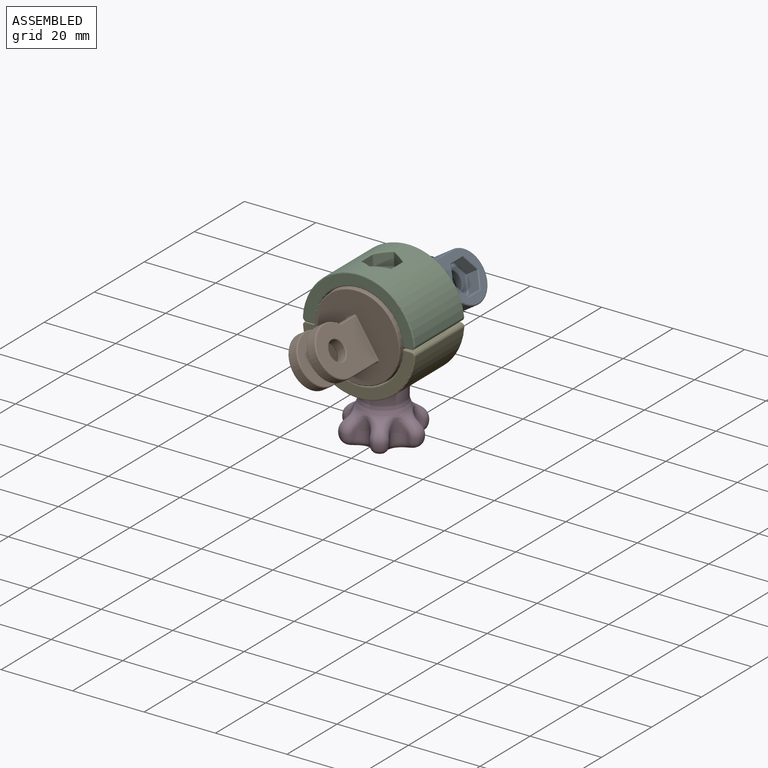
[diagram: assembled view]
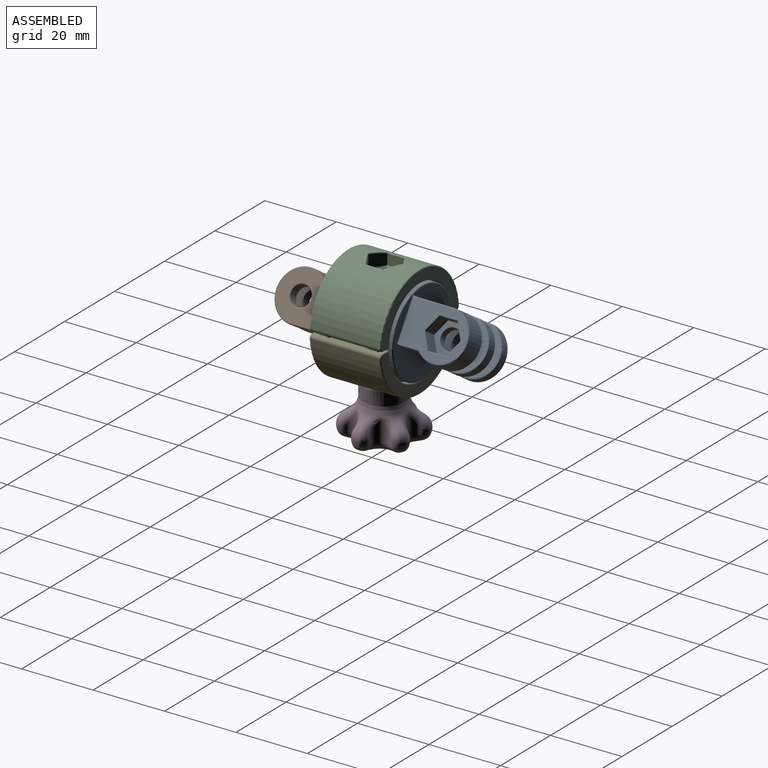
[diagram: assembled view, second angle]
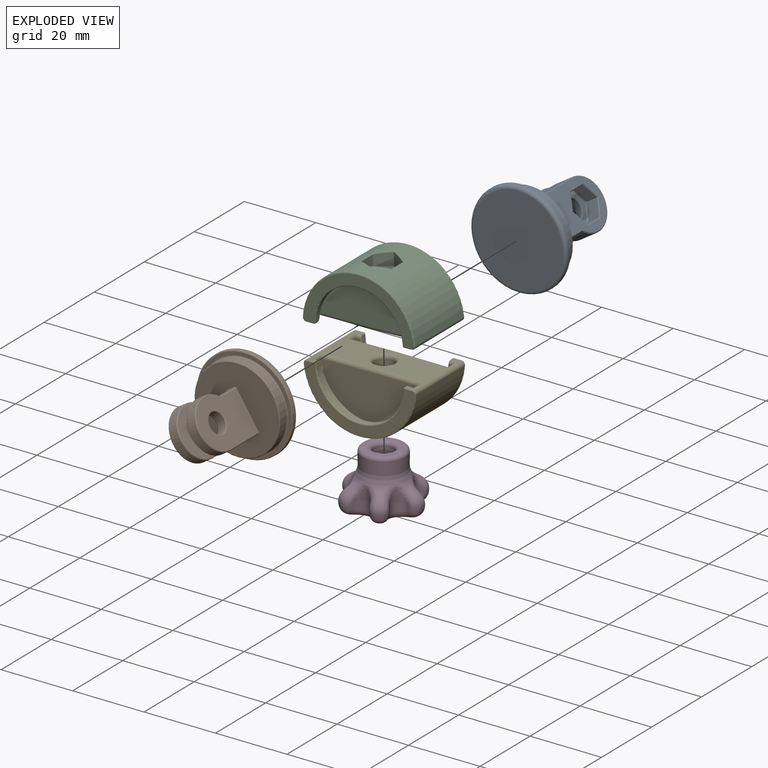
[diagram: exploded view]
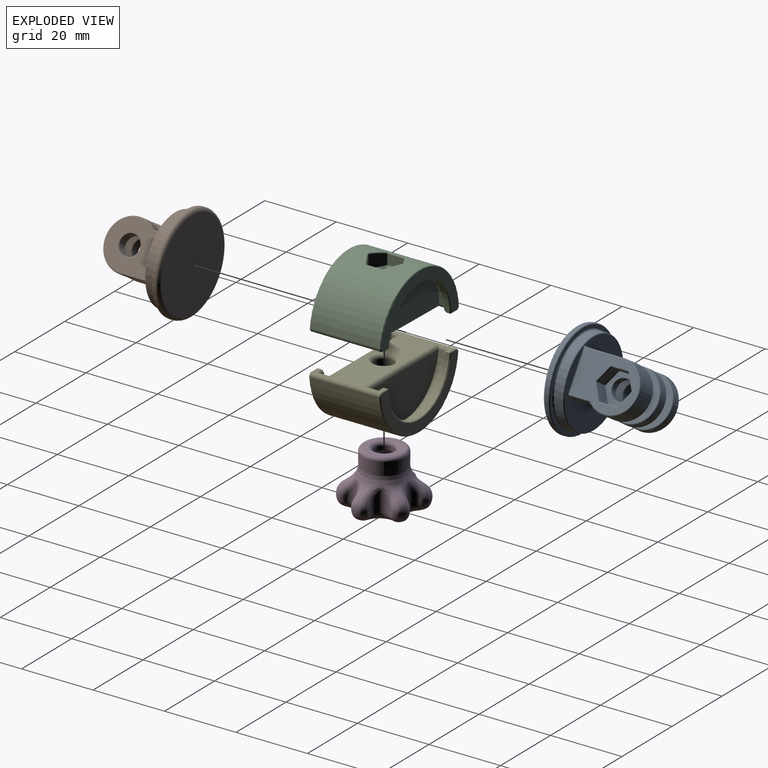
[diagram: exploded view, second angle]
ASSEMBLY  parts=5 mates=4
PART A: 97 faces, bbox 29.2x29.2x23.6 mm
  f0: plane 23.42x23.42mm, normal (0,0,1), area 258.6mm2, adj f31,f34,f35,f38,f39,f41,f42,f43
  f1: plane 17.4x13.4mm, normal (-1,0,0), area 128.6mm2, adj f60,f64,f67,f68,f78,f79,f80,f81
  f2: plane 17.4x13.4mm, normal (1,0,0), area 169.6mm2, adj f58,f61,f65,f66,f72
  f3: plane 17.4x13.4mm, normal (-1,0,0), area 169.6mm2, adj f32,f36,f39,f40,f73
  f4: plane 17.4x13.4mm, normal (1,0,0), area 169.6mm2, adj f30,f33,f37,f38,f74
  f5: plane 17.4x13.4mm, normal (-1,0,0), area 169.6mm2, adj f46,f50,f53,f54,f75
  f6: plane 17.4x13.4mm, normal (1,0,0), area 169.6mm2, adj f44,f47,f51,f52,f76
  f7: cylinder r=13.5mm len=27mm, axis (0,0,1), area 59.4mm2, adj f90,f91
  f8: plane 25x25mm, normal (0,0,-1), area 490.9mm2, adj f90
  f9: plane 26.4x26.4mm, normal (0,0,1), area 72.9mm2, adj f91,f92
  f10: cylinder r=12mm len=24mm, axis (0,0,-1), area 182.5mm2, adj f92,f93,f94,f95,f96
  f11: plane 10.7x5.65mm, normal (0,1,0), area 60.5mm2, adj f16,f58,f59,f60
  f12: plane 10.7x2.4mm, normal (0,1,0), area 25.7mm2, adj f15,f30,f31,f32
  f13: plane 10.7x2.15mm, normal (0,1,0), area 23mm2, adj f14,f44,f45,f46
  f14: cylinder r=7mm len=14mm, axis (-1,0,0), area 59.1mm2, adj f13,f17,f47,f50
  f15: cylinder r=7mm len=14mm, axis (-1,0,0), area 66mm2, adj f12,f18,f33,f36
  f16: cylinder r=7mm len=14mm, axis (-1,0,0), area 155.3mm2, adj f11,f19,f61,f64
  f17: plane 5.75x2.15mm, normal (0,-1,0), area 12.4mm2, adj f14,f51,f54,f57
  f18: plane 5.75x2.4mm, normal (0,-1,0), area 13.8mm2, adj f15,f37,f40,f43
  f19: plane 5.75x5.65mm, normal (0,-1,0), area 32.5mm2, adj f16,f65,f68,f71
  f20: plane 4.85x3.4mm, normal (0,1,0), area 16.5mm2, adj f21,f25,f79,f85
  f21: plane 4.2x3.4mm, normal (0,0.5,-0.87), area 16.5mm2, adj f20,f22,f78,f84
  f22: plane 4.2x3.4mm, normal (0,-0.5,-0.87), area 16.5mm2, adj f21,f23,f80,f86
  f23: plane 4.85x3.4mm, normal (0,-1,0), area 16.5mm2, adj f22,f24,f82,f88
  f24: plane 4.2x3.4mm, normal (0,-0.5,0.87), area 16.5mm2, adj f23,f25,f83,f89
  f25: plane 4.2x3.4mm, normal (0,0.5,0.87), area 16.5mm2, adj f20,f24,f81,f87
  f26: plane 9.01x7.8mm, normal (-1,0,0), area 23.5mm2, adj f77,f84,f85,f86,f87,f88,f89
  f27: cylinder r=2.75mm len=5.5mm, axis (-1,0,0), area 28.5mm2, adj f72,f77
  f28: cylinder r=2.75mm len=5.5mm, axis (-1,0,0), area 37.1mm2, adj f75,f76
  f29: cylinder r=2.75mm len=5.5mm, axis (-1,0,0), area 41.5mm2, adj f73,f74
  f30: cylinder r=0.3mm len=10.7mm, axis (0,0,-1), area 5mm2, adj f4,f12,f33,f34
  f31: cylinder r=0.3mm len=2.4mm, axis (1,0,0), area 1.1mm2, adj f0,f12,f34,f35
  f32: cylinder r=0.3mm len=10.7mm, axis (0,0,1), area 5mm2, adj f3,f12,f35,f36
  f33: torus R=6.7mm, axis (1,0,0), area 12.8mm2, adj f4,f15,f30,f37
  f34: torus R=0.6mm, axis (0,0,1), area 0.3mm2, adj f0,f30,f31,f38
  f35: torus R=0.6mm, axis (0,0,1), area 0.3mm2, adj f0,f31,f32,f39
  f36: torus R=6.7mm, axis (1,0,0), area 12.8mm2, adj f3,f15,f32,f40
  f37: cylinder r=0.3mm len=5.88mm, axis (0,0,-1), area 2.7mm2, adj f4,f18,f33,f41
  f38: cylinder r=0.3mm len=11.35mm, axis (0,-1,0), area 5.3mm2, adj f0,f4,f34,f41
  f39: cylinder r=0.3mm len=11.35mm, axis (0,1,0), area 5.3mm2, adj f0,f3,f35,f42
  f40: cylinder r=0.3mm len=5.88mm, axis (0,0,1), area 2.7mm2, adj f3,f18,f36,f42
  f41: torus R=0.6mm, axis (0,0,1), area 0.3mm2, adj f0,f37,f38,f43
  f42: torus R=0.6mm, axis (0,0,1), area 0.3mm2, adj f0,f39,f40,f43
  f43: cylinder r=0.3mm len=2.4mm, axis (-1,0,0), area 1.1mm2, adj f0,f18,f41,f42
  f44: cylinder r=0.3mm len=10.7mm, axis (0,0,-1), area 5mm2, adj f6,f13,f47,f48
  f45: cylinder r=0.3mm len=2.15mm, axis (1,0,0), area 1mm2, adj f0,f13,f48,f49
  f46: cylinder r=0.3mm len=10.7mm, axis (0,0,1), area 5mm2, adj f5,f13,f49,f50
  f47: torus R=6.7mm, axis (1,0,0), area 12.8mm2, adj f6,f14,f44,f51
  f48: torus R=0.6mm, axis (0,0,1), area 0.3mm2, adj f0,f44,f45,f52,f93
  f49: torus R=0.6mm, axis (0,0,1), area 0.3mm2, adj f0,f45,f46,f53
  f50: torus R=6.7mm, axis (1,0,0), area 12.8mm2, adj f5,f14,f46,f54
  f51: cylinder r=0.3mm len=5.88mm, axis (0,0,-1), area 2.7mm2, adj f6,f17,f47,f55
  f52: cylinder r=0.3mm len=11.35mm, axis (0,-1,0), area 5.3mm2, adj f0,f6,f48,f55
  f53: cylinder r=0.3mm len=11.35mm, axis (0,1,0), area 5.3mm2, adj f0,f5,f49,f56
  f54: cylinder r=0.3mm len=5.88mm, axis (0,0,1), area 2.7mm2, adj f5,f17,f50,f56
  f55: torus R=0.6mm, axis (0,0,1), area 0.3mm2, adj f0,f51,f52,f57
  f56: torus R=0.6mm, axis (0,0,1), area 0.3mm2, adj f0,f53,f54,f57
  f57: cylinder r=0.3mm len=2.15mm, axis (-1,0,0), area 1mm2, adj f0,f17,f55,f56
  f58: cylinder r=0.3mm len=10.7mm, axis (0,0,-1), area 5mm2, adj f2,f11,f61,f62
  f59: cylinder r=0.3mm len=5.65mm, axis (1,0,0), area 2.7mm2, adj f0,f11,f62,f63
  f60: cylinder r=0.3mm len=10.7mm, axis (0,0,1), area 5mm2, adj f1,f11,f63,f64
  f61: torus R=6.7mm, axis (1,0,0), area 12.8mm2, adj f2,f16,f58,f65
  f62: torus R=0.6mm, axis (0,0,1), area 0.3mm2, adj f0,f58,f59,f66
  f63: torus R=0.6mm, axis (0,0,1), area 0.3mm2, adj f0,f59,f60,f67,f96
  f64: torus R=6.7mm, axis (1,0,0), area 12.8mm2, adj f1,f16,f60,f68
  f65: cylinder r=0.3mm len=5.88mm, axis (0,0,-1), area 2.7mm2, adj f2,f19,f61,f69
  f66: cylinder r=0.3mm len=11.35mm, axis (0,-1,0), area 5.3mm2, adj f0,f2,f62,f69
  f67: cylinder r=0.3mm len=11.35mm, axis (0,1,0), area 5.3mm2, adj f0,f1,f63,f70
  f68: cylinder r=0.3mm len=5.88mm, axis (0,0,-1), area 2.7mm2, adj f1,f19,f64,f70
  f69: torus R=0.6mm, axis (0,0,1), area 0.3mm2, adj f0,f65,f66,f71
  f70: torus R=0.6mm, axis (0,0,1), area 0.3mm2, adj f0,f67,f68,f71
  f71: cylinder r=0.3mm len=5.65mm, axis (-1,0,0), area 2.7mm2, adj f0,f19,f69,f70
  f72: torus R=3.05mm, axis (1,0,0), area 8.5mm2, adj f2,f27
  f73: torus R=3.05mm, axis (1,0,0), area 8.5mm2, adj f3,f29
  f74: torus R=3.05mm, axis (1,0,0), area 8.5mm2, adj f4,f29
  f75: torus R=3.05mm, axis (1,0,0), area 8.5mm2, adj f5,f28
  f76: torus R=3.05mm, axis (1,0,0), area 8.5mm2, adj f6,f28
  f77: torus R=3.05mm, axis (-1,0,0), area 8.5mm2, adj f26,f27
  f78: cylinder r=0.3mm len=4.65mm, axis (0,0.87,0.5), area 2.4mm2, adj f1,f21,f79,f80
  f79: cylinder r=0.3mm len=5.2mm, axis (0,0,1), area 2.4mm2, adj f1,f20,f78,f81
  f80: cylinder r=0.3mm len=4.65mm, axis (0,0.87,-0.5), area 2.4mm2, adj f1,f22,f78,f82
  f81: cylinder r=0.3mm len=4.65mm, axis (0,-0.87,0.5), area 2.4mm2, adj f1,f25,f79,f83
  f82: cylinder r=0.3mm len=5.2mm, axis (0,0,-1), area 2.4mm2, adj f1,f23,f80,f83
  f83: cylinder r=0.3mm len=4.65mm, axis (0,-0.87,-0.5), area 2.4mm2, adj f1,f24,f81,f82
  f84: cylinder r=0.3mm len=4.35mm, axis (0,0.87,0.5), area 2.2mm2, adj f21,f26,f85,f86
  f85: cylinder r=0.3mm len=4.85mm, axis (0,0,1), area 2.2mm2, adj f20,f26,f84,f87
  f86: cylinder r=0.3mm len=4.35mm, axis (0,0.87,-0.5), area 2.2mm2, adj f22,f26,f84,f88
  f87: cylinder r=0.3mm len=4.35mm, axis (0,-0.87,0.5), area 2.2mm2, adj f25,f26,f85,f89
  f88: cylinder r=0.3mm len=4.85mm, axis (0,0,-1), area 2.2mm2, adj f23,f26,f86,f89
  f89: cylinder r=0.3mm len=4.35mm, axis (0,-0.87,-0.5), area 2.2mm2, adj f24,f26,f87,f88
  f90: torus R=12.5mm, axis (0,0,1), area 129.7mm2, adj f7,f8
  f91: torus R=13.2mm, axis (0,0,1), area 39.6mm2, adj f7,f9
  f92: torus R=12.29mm, axis (0,0,1), area 34.6mm2, adj f9,f10
  f93: bspline ~1.03x0.89mm, area 0.3mm2, adj f10,f48,f94,f95
  f94: torus R=11.71mm, axis (0,0,1), area 9.8mm2, adj f0,f10,f93,f96
  f95: torus R=11.71mm, axis (0,0,1), area 23.7mm2, adj f0,f10,f93,f96
  f96: bspline ~1.03x0.89mm, area 0.3mm2, adj f10,f63,f94,f95
PART B: 53 faces, bbox 29.2x29.2x23.6 mm
  f0: plane 23.42x23.42mm, normal (0,0,1), area 341mm2, adj f18,f21,f22,f25,f26,f28,f29,f30
  f1: plane 17.4x13.4mm, normal (1,0,0), area 169.6mm2, adj f31,f34,f38,f39,f45
  f2: plane 17.4x13.4mm, normal (-1,0,0), area 169.6mm2, adj f19,f23,f26,f27,f46
  f3: plane 17.4x13.4mm, normal (1,0,0), area 169.6mm2, adj f17,f20,f24,f25,f47
  f4: cylinder r=13.5mm len=27mm, axis (0,0,1), area 59.4mm2, adj f49,f50
  f5: plane 25x25mm, normal (0,0,-1), area 490.9mm2, adj f49
  f6: plane 26.4x26.4mm, normal (0,0,1), area 72.9mm2, adj f50,f51
  f7: cylinder r=12mm len=24mm, axis (0,0,-1), area 182.5mm2, adj f51,f52
  f8: plane 10.7x2.4mm, normal (0,1,0), area 25.7mm2, adj f12,f31,f32,f33
  f9: plane 17.4x13.4mm, normal (-1,0,0), area 169.6mm2, adj f33,f37,f40,f41,f48
  f10: plane 10.7x2.4mm, normal (0,1,0), area 25.7mm2, adj f11,f17,f18,f19
  f11: cylinder r=7mm len=14mm, axis (-1,0,0), area 66mm2, adj f10,f13,f20,f23
  f12: cylinder r=7mm len=14mm, axis (-1,0,0), area 66mm2, adj f8,f14,f34,f37
  f13: plane 5.75x2.4mm, normal (0,-1,0), area 13.8mm2, adj f11,f24,f27,f30
  f14: plane 5.75x2.4mm, normal (0,-1,0), area 13.8mm2, adj f12,f38,f41,f44
  f15: cylinder r=2.75mm len=5.5mm, axis (-1,0,0), area 41.5mm2, adj f45,f48
  f16: cylinder r=2.75mm len=5.5mm, axis (-1,0,0), area 41.5mm2, adj f46,f47
  f17: cylinder r=0.3mm len=10.7mm, axis (0,0,-1), area 5mm2, adj f3,f10,f20,f21
  f18: cylinder r=0.3mm len=2.4mm, axis (1,0,0), area 1.1mm2, adj f0,f10,f21,f22
  f19: cylinder r=0.3mm len=10.7mm, axis (0,0,1), area 5mm2, adj f2,f10,f22,f23
  f20: torus R=6.7mm, axis (1,0,0), area 12.8mm2, adj f3,f11,f17,f24
  f21: torus R=0.6mm, axis (0,0,1), area 0.3mm2, adj f0,f17,f18,f25
  f22: torus R=0.6mm, axis (0,0,1), area 0.3mm2, adj f0,f18,f19,f26
  f23: torus R=6.7mm, axis (1,0,0), area 12.8mm2, adj f2,f11,f19,f27
  f24: cylinder r=0.3mm len=5.88mm, axis (0,0,-1), area 2.7mm2, adj f3,f13,f20,f28
  f25: cylinder r=0.3mm len=11.35mm, axis (0,-1,0), area 5.3mm2, adj f0,f3,f21,f28
  f26: cylinder r=0.3mm len=11.35mm, axis (0,1,0), area 5.3mm2, adj f0,f2,f22,f29
  f27: cylinder r=0.3mm len=5.88mm, axis (0,0,1), area 2.7mm2, adj f2,f13,f23,f29
  f28: torus R=0.6mm, axis (0,0,1), area 0.3mm2, adj f0,f24,f25,f30
  f29: torus R=0.6mm, axis (0,0,1), area 0.3mm2, adj f0,f26,f27,f30
  f30: cylinder r=0.3mm len=2.4mm, axis (-1,0,0), area 1.1mm2, adj f0,f13,f28,f29
  f31: cylinder r=0.3mm len=10.7mm, axis (0,0,-1), area 5mm2, adj f1,f8,f34,f35
  f32: cylinder r=0.3mm len=2.4mm, axis (1,0,0), area 1.1mm2, adj f0,f8,f35,f36
  f33: cylinder r=0.3mm len=10.7mm, axis (0,0,1), area 5mm2, adj f8,f9,f36,f37
  f34: torus R=6.7mm, axis (1,0,0), area 12.8mm2, adj f1,f12,f31,f38
  f35: torus R=0.6mm, axis (0,0,1), area 0.3mm2, adj f0,f31,f32,f39
  f36: torus R=0.6mm, axis (0,0,1), area 0.3mm2, adj f0,f32,f33,f40
  f37: torus R=6.7mm, axis (1,0,0), area 12.8mm2, adj f9,f12,f33,f41
  f38: cylinder r=0.3mm len=5.88mm, axis (0,0,-1), area 2.7mm2, adj f1,f14,f34,f42
  f39: cylinder r=0.3mm len=11.35mm, axis (0,-1,0), area 5.3mm2, adj f0,f1,f35,f42
  f40: cylinder r=0.3mm len=11.35mm, axis (0,1,0), area 5.3mm2, adj f0,f9,f36,f43
  f41: cylinder r=0.3mm len=5.88mm, axis (0,0,-1), area 2.7mm2, adj f9,f14,f37,f43
  f42: torus R=0.6mm, axis (0,0,1), area 0.3mm2, adj f0,f38,f39,f44
  f43: torus R=0.6mm, axis (0,0,1), area 0.3mm2, adj f0,f40,f41,f44
  f44: cylinder r=0.3mm len=2.4mm, axis (-1,0,0), area 1.1mm2, adj f0,f14,f42,f43
  f45: torus R=3.05mm, axis (1,0,0), area 8.5mm2, adj f1,f15
  f46: torus R=3.05mm, axis (1,0,0), area 8.5mm2, adj f2,f16
  f47: torus R=3.05mm, axis (1,0,0), area 8.5mm2, adj f3,f16
  f48: torus R=3.05mm, axis (1,0,0), area 8.5mm2, adj f9,f15
  f49: torus R=12.5mm, axis (0,0,1), area 129.7mm2, adj f4,f5
  f50: torus R=13.2mm, axis (0,0,1), area 39.6mm2, adj f4,f6
  f51: torus R=12.29mm, axis (0,0,1), area 34.6mm2, adj f6,f7
  f52: torus R=11.71mm, axis (0,0,1), area 34mm2, adj f0,f7
PART C: 93 faces, bbox 34.7x20.7x17.8 mm
  f0: cylinder r=15.75mm len=31.41mm, axis (0,-1,0), area 840.9mm2, adj f27,f35,f45,f58,f68,f72,f73,f77
  f1: plane 2.17x0.7mm, normal (0,0,1), area 1.5mm2, adj f31,f35,f38,f39
  f2: plane 15.4x10.19mm, normal (0,0,1), area 120.8mm2, adj f4,f25,f32,f33,f35
  f3: plane 2.17x0.7mm, normal (-0.02,0,1), area 1.5mm2, adj f26,f27,f43,f48
  f4: plane 14.71x9.5mm, normal (-0.02,0,1), area 117.6mm2, adj f2,f25,f27,f29,f30
  f5: plane 27.41x12.75mm, normal (0,-1,0), area 46.9mm2, adj f6,f28,f34,f51
  f6: cylinder r=13.75mm len=27.42mm, axis (0,-1,0), area 92.5mm2, adj f5,f7,f27,f28,f30,f33,f34,f35
  f7: plane 27.41x12.75mm, normal (0,1,0), area 267.9mm2, adj f6,f30,f33
  f8: plane 27.41x12.75mm, normal (0,-1,0), area 267.9mm2, adj f9,f29,f32
  f9: cylinder r=13.75mm len=27.42mm, axis (0,-1,0), area 92.5mm2, adj f8,f10,f26,f27,f29,f31,f32,f35
  f10: plane 27.41x12.75mm, normal (0,1,0), area 46.9mm2, adj f9,f26,f31,f37
  f11: cylinder r=12.25mm len=24.49mm, axis (0,-1,0), area 52.3mm2, adj f36,f37,f38,f40,f43,f44
  f12: plane 30.81x15.15mm, normal (0,-1,0), area 124.9mm2, adj f39,f42,f44,f45,f47,f48
  f13: plane 30.81x15.15mm, normal (0,1,0), area 124.9mm2, adj f52,f55,f56,f58,f60,f61
  f14: cylinder r=12.25mm len=24.49mm, axis (0,-1,0), area 52.3mm2, adj f49,f50,f51,f54,f56,f57
  f15: plane 2.17x0.7mm, normal (-0.02,0,1), area 1.5mm2, adj f27,f28,f57,f61
  f16: plane 2.17x0.7mm, normal (0,0,1), area 1.5mm2, adj f34,f35,f50,f52
  f17: plane 4.5x2.73mm, normal (-1,0,0), area 12.3mm2, adj f69,f70,f78,f79
  f18: plane 3.9x3.4mm, normal (-0.5,-0.87,0), area 14.4mm2, adj f63,f67,f68,f69
  f19: plane 3.9x3.4mm, normal (0.5,-0.87,0), area 14.4mm2, adj f66,f67,f76,f77
  f20: plane 4.5x2.73mm, normal (1,0,0), area 12.3mm2, adj f75,f76,f86,f87
  f21: plane 3.9x3.4mm, normal (0.5,0.87,0), area 14.4mm2, adj f81,f86,f89,f92
  f22: plane 3.9x3.4mm, normal (-0.5,0.87,0), area 14.4mm2, adj f79,f80,f88,f89
  f23: plane 9.01x7.8mm, normal (0,0,-1), area 23.5mm2, adj f62,f63,f66,f70,f75,f80,f81
  f24: cylinder r=2.75mm len=10.38mm, axis (0,0,-1), area 179.4mm2, adj f25,f62
  f25: bspline ~7.5x7.49mm, area 30.7mm2, adj f2,f4,f24
  f26: cylinder r=1mm len=2.22mm, axis (-1,0,-0.02), area 2.4mm2, adj f3,f9,f10,f27,f40
  f27: cylinder r=1mm len=19.4mm, axis (0,-1,0), area 41.6mm2, adj f0,f3,f4,f6,f9,f15,f26,f28
  f28: cylinder r=1mm len=2.22mm, axis (1,0,0.02), area 2.4mm2, adj f5,f6,f15,f27,f54
  f29: cylinder r=1mm len=14.73mm, axis (1,0,0.02), area 22.1mm2, adj f4,f8,f9,f27,f32
  f30: cylinder r=1mm len=14.73mm, axis (-1,0,-0.02), area 22.1mm2, adj f4,f6,f7,f27,f33
  f31: cylinder r=1mm len=2.21mm, axis (-1,0,0), area 2.4mm2, adj f1,f9,f10,f35,f36
  f32: cylinder r=1mm len=14.72mm, axis (1,0,0), area 22.1mm2, adj f2,f8,f9,f29,f35
  f33: cylinder r=1mm len=14.72mm, axis (-1,0,0), area 22.1mm2, adj f2,f6,f7,f30,f35
  f34: cylinder r=1mm len=2.21mm, axis (1,0,0), area 2.4mm2, adj f5,f6,f16,f35,f49
  f35: cylinder r=1mm len=19.4mm, axis (0,-1,0), area 41.6mm2, adj f0,f1,f2,f6,f9,f16,f31,f32
  f36: bspline ~1.22x1.06mm, area 0.6mm2, adj f11,f31,f37,f38
  f37: torus R=12.55mm, axis (0,-1,0), area 17.3mm2, adj f10,f11,f36,f40
  f38: cylinder r=0.3mm len=0.7mm, axis (0,-1,0), area 0.3mm2, adj f1,f11,f36,f41
  f39: cylinder r=0.3mm len=2.17mm, axis (1,0,0), area 1mm2, adj f1,f12,f41,f42
  f40: bspline ~1.23x1.06mm, area 0.6mm2, adj f11,f26,f37,f43
  f41: sphere r=0.3mm, area 0.1mm2, adj f38,f39,f44
  f42: torus R=0.7mm, axis (0,-1,0), area 0.7mm2, adj f12,f35,f39,f45
  f43: cylinder r=0.3mm len=0.7mm, axis (0,-1,0), area 0.3mm2, adj f3,f11,f40,f46
  f44: torus R=12.55mm, axis (0,-1,0), area 17.9mm2, adj f11,f12,f41,f46
  f45: torus R=15.45mm, axis (0,-1,0), area 22mm2, adj f0,f12,f42,f47
  f46: sphere r=0.3mm, area 0.1mm2, adj f43,f44,f48
  f47: torus R=0.7mm, axis (0,-1,0), area 0.7mm2, adj f12,f27,f45,f48
  f48: cylinder r=0.3mm len=2.17mm, axis (1,0,0.02), area 1mm2, adj f3,f12,f46,f47
  f49: bspline ~1.22x1.06mm, area 0.6mm2, adj f14,f34,f50,f51
  f50: cylinder r=0.3mm len=0.7mm, axis (0,-1,0), area 0.3mm2, adj f14,f16,f49,f53
  f51: torus R=12.55mm, axis (0,-1,0), area 17.3mm2, adj f5,f14,f49,f54
  f52: cylinder r=0.3mm len=2.17mm, axis (-1,0,0), area 1mm2, adj f13,f16,f53,f55
  f53: sphere r=0.3mm, area 0.2mm2, adj f50,f52,f56
  f54: bspline ~1.22x1.06mm, area 0.6mm2, adj f14,f28,f51,f57
  f55: torus R=0.7mm, axis (0,-1,0), area 0.7mm2, adj f13,f35,f52,f58
  f56: torus R=12.55mm, axis (0,-1,0), area 17.9mm2, adj f13,f14,f53,f59
  f57: cylinder r=0.3mm len=0.7mm, axis (0,-1,0), area 0.3mm2, adj f14,f15,f54,f59
  f58: torus R=15.45mm, axis (0,-1,0), area 22mm2, adj f0,f13,f55,f60
  f59: sphere r=0.3mm, area 0.1mm2, adj f56,f57,f61
  f60: torus R=0.7mm, axis (0,-1,0), area 0.7mm2, adj f13,f27,f58,f61
  f61: cylinder r=0.3mm len=2.17mm, axis (-1,0,-0.02), area 1mm2, adj f13,f15,f59,f60
  f62: torus R=3.05mm, axis (0,0,1), area 8.5mm2, adj f23,f24
  f63: cylinder r=0.3mm len=4.05mm, axis (-0.87,0.5,0), area 2.1mm2, adj f18,f23,f64,f65
  f64: sphere r=0.3mm, area 0.1mm2, adj f63,f66,f67
  f65: sphere r=0.3mm, area 0.1mm2, adj f63,f69,f70
  f66: cylinder r=0.3mm len=4.05mm, axis (-0.87,-0.5,0), area 2.1mm2, adj f19,f23,f64,f71
  f67: cylinder r=0.3mm len=3.4mm, axis (0,0,1), area 1.1mm2, adj f18,f19,f64,f72
  f68: bspline ~7.5x4.49mm, area 2.3mm2, adj f0,f18,f72,f73
  f69: cylinder r=0.3mm len=2.82mm, axis (0,0,1), area 0.9mm2, adj f17,f18,f65,f73
  f70: cylinder r=0.3mm len=4.5mm, axis (0,1,0), area 2.1mm2, adj f17,f23,f65,f74
  f71: sphere r=0.3mm, area 0.1mm2, adj f66,f75,f76
  f72: bspline ~0.82x0.38mm, area 0.2mm2, adj f0,f67,f68,f77
  f73: bspline ~0.68x0.58mm, area 0.2mm2, adj f0,f68,f69,f78
  f74: sphere r=0.3mm, area 0.1mm2, adj f70,f79,f80
  f75: cylinder r=0.3mm len=4.5mm, axis (0,-1,0), area 2.1mm2, adj f20,f23,f71,f82
  f76: cylinder r=0.3mm len=2.82mm, axis (0,0,1), area 0.9mm2, adj f19,f20,f71,f83
  f77: bspline ~7.5x4.49mm, area 2.3mm2, adj f0,f19,f72,f83
  f78: cylinder r=0.3mm len=4.5mm, axis (0,-1,0), area 2.5mm2, adj f0,f17,f73,f84
  f79: cylinder r=0.3mm len=2.82mm, axis (0,0,1), area 0.9mm2, adj f17,f22,f74,f84
  f80: cylinder r=0.3mm len=4.05mm, axis (0.87,0.5,0), area 2.1mm2, adj f22,f23,f74,f85
  f81: cylinder r=0.3mm len=4.05mm, axis (0.87,-0.5,0), area 2.1mm2, adj f21,f23,f82,f85
  f82: sphere r=0.3mm, area 0.1mm2, adj f75,f81,f86
  f83: bspline ~0.69x0.61mm, area 0.2mm2, adj f0,f76,f77,f87
  f84: bspline ~0.69x0.61mm, area 0.2mm2, adj f0,f78,f79,f88
  f85: sphere r=0.3mm, area 0.1mm2, adj f80,f81,f89
  f86: cylinder r=0.3mm len=2.82mm, axis (0,0,1), area 0.9mm2, adj f20,f21,f82,f90
  f87: cylinder r=0.3mm len=4.5mm, axis (0,-1,0), area 2.5mm2, adj f0,f20,f83,f90
  f88: bspline ~7.5x4.49mm, area 2.3mm2, adj f0,f22,f84,f91
  f89: cylinder r=0.3mm len=3.4mm, axis (0,0,1), area 1.1mm2, adj f21,f22,f85,f91
  f90: bspline ~0.68x0.58mm, area 0.2mm2, adj f0,f86,f87,f92
  f91: bspline ~0.82x0.38mm, area 0.2mm2, adj f0,f88,f89,f92
  f92: bspline ~7.5x4.49mm, area 2.3mm2, adj f0,f21,f90,f91
PART D: 57 faces, bbox 22.2x22.2x15.6 mm
  f0: revolved ~22.19x22.19mm, area -519.4mm2, adj f1,f3,f17,f18,f19,f20,f21,f22
  f1: revolved ~5.76x1.98mm, area 0.4mm2, adj f0,f20
  f2: plane 10x10mm, normal (0,0,-1), area 33.2mm2, adj f30,f31
  f3: cylinder r=6mm len=12mm, axis (0,0,1), area 56.5mm2, adj f0,f31
  f4: plane 12.12x4.27mm, normal (0,-1,0), area 51.7mm2, adj f29,f40,f47,f48
  f5: plane 12.12x3.7mm, normal (0.87,-0.5,0), area 51.7mm2, adj f27,f33,f39,f40
  f6: plane 12.12x3.7mm, normal (0.87,0.5,0), area 51.7mm2, adj f25,f33,f37,f38
  f7: plane 12.12x4.27mm, normal (0,1,0), area 51.7mm2, adj f24,f37,f45,f46
  f8: plane 12.12x3.7mm, normal (-0.87,0.5,0), area 51.7mm2, adj f26,f45,f51,f54
  f9: plane 12.12x3.7mm, normal (-0.87,-0.5,0), area 51.7mm2, adj f28,f48,f52,f54
  f10: plane 8.54x7.4mm, normal (0,0,1), area 13.2mm2, adj f38,f39,f46,f47,f51,f52,f56
  f11: cylinder r=2.5mm len=5.95mm, axis (0,0,-1), area 25.8mm2, adj f22
  f12: cylinder r=2.5mm len=5.95mm, axis (0,0,-1), area 25.8mm2, adj f21
  f13: cylinder r=2.5mm len=5.95mm, axis (0,0,-1), area 26.1mm2, adj f20
  f14: cylinder r=2.5mm len=5.95mm, axis (0,0,-1), area 26.2mm2, adj f19
  f15: cylinder r=2.5mm len=5.95mm, axis (0,0,-1), area 26.1mm2, adj f18
  f16: cylinder r=2.5mm len=5.95mm, axis (0,0,-1), area 25.5mm2, adj f17
  f17: bspline ~9.31x8.91mm, area 81.3mm2, adj f0,f16
  f18: bspline ~9.19x8.91mm, area 82mm2, adj f0,f15
  f19: bspline ~10.48x8.91mm, area 82.9mm2, adj f0,f14
  f20: bspline ~9.31x8.91mm, area 84.5mm2, adj f0,f1,f13
  f21: bspline ~9.19x8.91mm, area 80.9mm2, adj f0,f12
  f22: bspline ~10.49x8.91mm, area 82mm2, adj f0,f11
  f23: cylinder r=2.8mm len=5.6mm, axis (0,0,1), area 17.6mm2, adj f30,f56
  f24: bspline ~6.39x0.54mm, area 3.9mm2, adj f0,f7,f34,f41
  f25: bspline ~5.79x3.64mm, area 3.9mm2, adj f0,f6,f32,f34
  f26: bspline ~5.79x3.64mm, area 3.9mm2, adj f0,f8,f41,f55
  f27: bspline ~5.79x3.64mm, area 3.9mm2, adj f0,f5,f32,f36
  f28: bspline ~5.79x3.64mm, area 3.9mm2, adj f0,f9,f44,f55
  f29: bspline ~6.39x0.54mm, area 3.9mm2, adj f0,f4,f36,f44
  f30: torus R=3.8mm, axis (0,0,1), area 31.2mm2, adj f2,f23
  f31: torus R=5mm, axis (0,0,1), area 55.6mm2, adj f2,f3
  f32: bspline ~0.74x0.56mm, area 0.2mm2, adj f25,f27,f33
  f33: cylinder r=0.5mm len=12.1mm, axis (0,0,1), area 6.3mm2, adj f5,f6,f32,f35
  f34: bspline ~0.77x0.59mm, area 0.2mm2, adj f24,f25,f37
  f35: sphere r=0.5mm, area 0.5mm2, adj f33,f38,f39
  f36: bspline ~0.77x0.59mm, area 0.2mm2, adj f27,f29,f40
  f37: cylinder r=0.5mm len=12.1mm, axis (0,0,1), area 6.3mm2, adj f6,f7,f34,f42
  f38: cylinder r=0.5mm len=3.95mm, axis (-0.5,0.87,0), area 3.4mm2, adj f6,f10,f35,f42
  f39: cylinder r=0.5mm len=3.95mm, axis (0.5,0.87,0), area 3.4mm2, adj f5,f10,f35,f43
  f40: cylinder r=0.5mm len=12.1mm, axis (0,0,1), area 6.3mm2, adj f4,f5,f36,f43
  f41: bspline ~0.77x0.59mm, area 0.2mm2, adj f24,f26,f45
  f42: sphere r=0.5mm, area 0.3mm2, adj f37,f38,f46
  f43: sphere r=0.5mm, area 0.2mm2, adj f39,f40,f47
  f44: bspline ~0.77x0.59mm, area 0.2mm2, adj f28,f29,f48
  f45: cylinder r=0.5mm len=12.1mm, axis (0,0,1), area 6.3mm2, adj f7,f8,f41,f49
  f46: cylinder r=0.5mm len=4.27mm, axis (-1,0,0), area 3.4mm2, adj f7,f10,f42,f49
  f47: cylinder r=0.5mm len=4.27mm, axis (1,0,0), area 3.4mm2, adj f4,f10,f43,f50
  f48: cylinder r=0.5mm len=12.1mm, axis (0,0,1), area 6.3mm2, adj f4,f9,f44,f50
  f49: sphere r=0.5mm, area 0.3mm2, adj f45,f46,f51
  f50: sphere r=0.5mm, area 0.3mm2, adj f47,f48,f52
  f51: cylinder r=0.5mm len=3.95mm, axis (-0.5,-0.87,0), area 3.4mm2, adj f8,f10,f49,f53
  f52: cylinder r=0.5mm len=3.95mm, axis (0.5,-0.87,0), area 3.4mm2, adj f9,f10,f50,f53
  f53: sphere r=0.5mm, area 0.4mm2, adj f51,f52,f54
  f54: cylinder r=0.5mm len=12.1mm, axis (0,0,1), area 6.3mm2, adj f8,f9,f53,f55
  f55: bspline ~0.74x0.56mm, area 0.2mm2, adj f26,f28,f54
  f56: torus R=3.3mm, axis (0,0,1), area 14.7mm2, adj f10,f23
PART E: 63 faces, bbox 34.7x20.7x17.8 mm
  f0: cylinder r=6.25mm len=10.44mm, axis (0,0,-1), area 0mm2, adj f1,f62
  f1: bspline ~12.01x4.1mm, area 6.5mm2, adj f0,f2,f60,f61
  f2: cylinder r=15.75mm len=31.41mm, axis (0,-1,0), area 822.1mm2, adj f1,f3,f55,f56,f57,f58,f60,f61
  f3: torus R=15.45mm, axis (0,-1,0), area 22mm2, adj f2,f4,f53,f54
  f4: plane 30.81x15.15mm, normal (0,1,0), area 124.9mm2, adj f3,f5,f51,f52,f53,f54
  f5: cylinder r=0.3mm len=2.17mm, axis (-1,0,0), area 1mm2, adj f4,f6,f50,f54
  f6: plane 2.17x0.7mm, normal (0,0,1), area 1.5mm2, adj f5,f7,f49,f57
  f7: cylinder r=1mm len=2.21mm, axis (1,0,0), area 2.4mm2, adj f6,f8,f47,f48,f57
  f8: cylinder r=13.75mm len=27.42mm, axis (0,-1,0), area 92.5mm2, adj f7,f9,f38,f45,f46,f47,f55,f57
  f9: cylinder r=1mm len=14.72mm, axis (-1,0,0), area 22.1mm2, adj f8,f10,f45,f46,f57
  f10: plane 15.4x10.19mm, normal (0,0,1), area 120.8mm2, adj f9,f11,f34,f37,f57
  f11: cylinder r=1mm len=14.72mm, axis (1,0,0), area 22.1mm2, adj f10,f12,f13,f33,f57
  f12: cylinder r=1mm len=14.73mm, axis (1,0,0.02), area 22.1mm2, adj f11,f13,f33,f37,f55
  f13: cylinder r=13.75mm len=27.42mm, axis (0,-1,0), area 92.5mm2, adj f11,f12,f14,f31,f32,f33,f55,f57
  f14: cylinder r=1mm len=2.21mm, axis (-1,0,0), area 2.4mm2, adj f13,f15,f30,f32,f57
  f15: plane 2.17x0.7mm, normal (0,0,1), area 1.5mm2, adj f14,f16,f29,f57
  f16: cylinder r=0.3mm len=2.17mm, axis (1,0,0), area 1mm2, adj f15,f17,f27,f28
  f17: plane 30.81x15.15mm, normal (0,-1,0), area 124.9mm2, adj f16,f18,f25,f26,f28,f56
  f18: cylinder r=0.3mm len=2.17mm, axis (1,0,0.02), area 1mm2, adj f17,f19,f24,f26
  f19: plane 2.17x0.7mm, normal (-0.02,0,1), area 1.5mm2, adj f18,f20,f31,f55
  f20: cylinder r=0.3mm len=0.7mm, axis (0,-1,0), area 0.3mm2, adj f19,f21,f23,f24
  f21: cylinder r=12.25mm len=24.49mm, axis (0,-1,0), area 52.3mm2, adj f20,f22,f23,f25,f29,f30
  f22: torus R=12.55mm, axis (0,-1,0), area 17.3mm2, adj f21,f23,f30,f32
  f23: bspline ~1.23x1.06mm, area 0.6mm2, adj f20,f21,f22,f31
  f24: sphere r=0.3mm, area 0.1mm2, adj f18,f20,f25
  f25: torus R=12.55mm, axis (0,-1,0), area 17.9mm2, adj f17,f21,f24,f27
  f26: torus R=0.7mm, axis (0,-1,0), area 0.7mm2, adj f17,f18,f55,f56
  f27: sphere r=0.3mm, area 0.1mm2, adj f16,f25,f29
  f28: torus R=0.7mm, axis (0,-1,0), area 0.7mm2, adj f16,f17,f56,f57
  f29: cylinder r=0.3mm len=0.7mm, axis (0,-1,0), area 0.3mm2, adj f15,f21,f27,f30
  f30: bspline ~1.22x1.06mm, area 0.6mm2, adj f14,f21,f22,f29
  f31: cylinder r=1mm len=2.22mm, axis (-1,0,-0.02), area 2.4mm2, adj f13,f19,f23,f32,f55
  f32: plane 27.41x12.75mm, normal (0,1,0), area 46.9mm2, adj f13,f14,f22,f31
  f33: plane 27.41x12.75mm, normal (0,-1,0), area 267.9mm2, adj f11,f12,f13
  f34: bspline ~7.5x7.49mm, area 30.7mm2, adj f10,f35,f37
  f35: cylinder r=2.75mm len=13.08mm, axis (0,0,-1), area 226.1mm2, adj f34,f36
  f36: torus R=3.05mm, axis (0,0,1), area 8.5mm2, adj f35,f62
  f37: plane 14.71x9.5mm, normal (-0.02,0,1), area 117.6mm2, adj f10,f12,f34,f45,f55
  f38: cylinder r=1mm len=2.22mm, axis (1,0,0.02), area 2.4mm2, adj f8,f39,f44,f47,f55
  f39: plane 2.17x0.7mm, normal (-0.02,0,1), area 1.5mm2, adj f38,f40,f52,f55
  f40: cylinder r=0.3mm len=0.7mm, axis (0,-1,0), area 0.3mm2, adj f39,f41,f42,f44
  f41: sphere r=0.3mm, area 0.1mm2, adj f40,f51,f52
  f42: cylinder r=12.25mm len=24.49mm, axis (0,-1,0), area 52.3mm2, adj f40,f43,f44,f48,f49,f51
  f43: torus R=12.55mm, axis (0,-1,0), area 17.3mm2, adj f42,f44,f47,f48
  f44: bspline ~1.22x1.06mm, area 0.6mm2, adj f38,f40,f42,f43
  f45: cylinder r=1mm len=14.73mm, axis (-1,0,-0.02), area 22.1mm2, adj f8,f9,f37,f46,f55
  f46: plane 27.41x12.75mm, normal (0,1,0), area 267.9mm2, adj f8,f9,f45
  f47: plane 27.41x12.75mm, normal (0,-1,0), area 46.9mm2, adj f7,f8,f38,f43
  f48: bspline ~1.22x1.06mm, area 0.6mm2, adj f7,f42,f43,f49
  f49: cylinder r=0.3mm len=0.7mm, axis (0,-1,0), area 0.3mm2, adj f6,f42,f48,f50
  f50: sphere r=0.3mm, area 0.2mm2, adj f5,f49,f51
  f51: torus R=12.55mm, axis (0,-1,0), area 17.9mm2, adj f4,f41,f42,f50
  f52: cylinder r=0.3mm len=2.17mm, axis (-1,0,-0.02), area 1mm2, adj f4,f39,f41,f53
  f53: torus R=0.7mm, axis (0,-1,0), area 0.7mm2, adj f3,f4,f52,f55
  f54: torus R=0.7mm, axis (0,-1,0), area 0.7mm2, adj f3,f4,f5,f57
  f55: cylinder r=1mm len=19.4mm, axis (0,-1,0), area 41.6mm2, adj f2,f8,f12,f13,f19,f26,f31,f37
  f56: torus R=15.45mm, axis (0,-1,0), area 22mm2, adj f2,f17,f26,f28
  f57: cylinder r=1mm len=19.4mm, axis (0,-1,0), area 41.6mm2, adj f2,f6,f7,f8,f9,f10,f11,f13
  f58: bspline ~12.46x4.41mm, area 6.5mm2, adj f2,f59,f60,f61
  f59: cylinder r=6.25mm len=10.44mm, axis (0,0,-1), area 0mm2, adj f58,f62
  f60: bspline ~7.21x1.11mm, area 2mm2, adj f1,f2,f58,f62
  f61: bspline ~7.21x1.11mm, area 2mm2, adj f1,f2,f58,f62
  f62: plane 12.58x12.58mm, normal (0,0,-1), area 93.5mm2, adj f0,f36,f59,f60,f61
PLACE A rot(axis=(-0.21,0.69,0.69),156.7deg) t=(23.22,7.47,3.38)mm
PLACE B rot(axis=(0.21,0.69,-0.69),156.7deg) t=(23.22,-8.03,3.38)mm
PLACE C rot(axis=(1,0,0.02),180deg) t=(23.22,-0.28,3.38)mm
PLACE D rot(axis=(1,0,0),180deg) t=(23.22,-0.28,-13.27)mm
PLACE E t=(23.22,-0.28,3.38)mm
MATE revolute B.f4 <-> C.f0  axis (0,1,0) through (23.22,-6.03,3.38)mm
MATE revolute D.f3 <-> E.f35  axis (0,0,1) through (23.22,-0.28,-10.77)mm
MATE revolute A.f7 <-> C.f0  axis (0,-1,0) through (23.22,5.47,3.38)mm
MATE fastened C.f4 <-> E.f37  axis (0.02,0,-1) through (23.21,-0.28,3.38)mm
